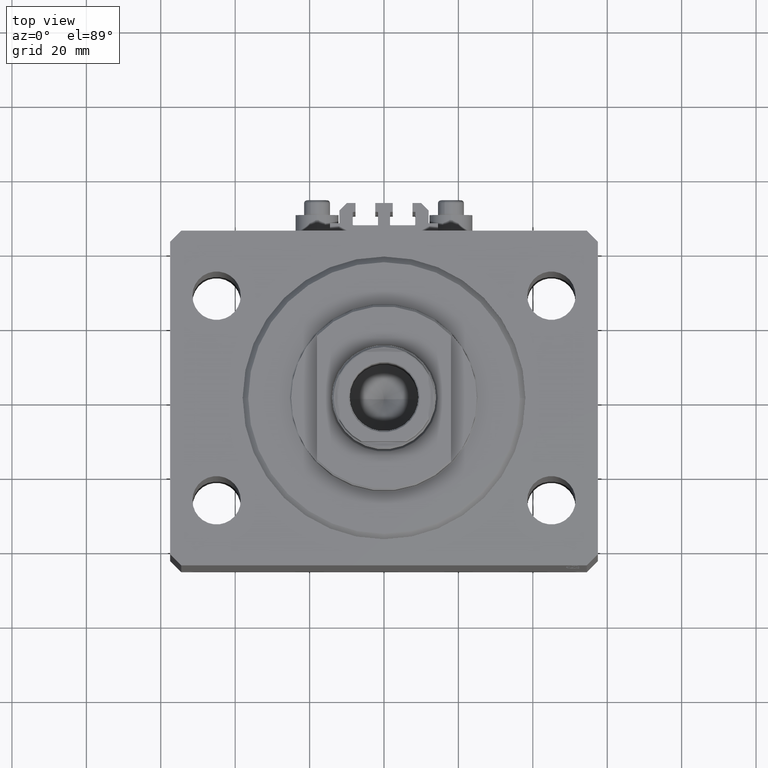
[diagram: clean part render]
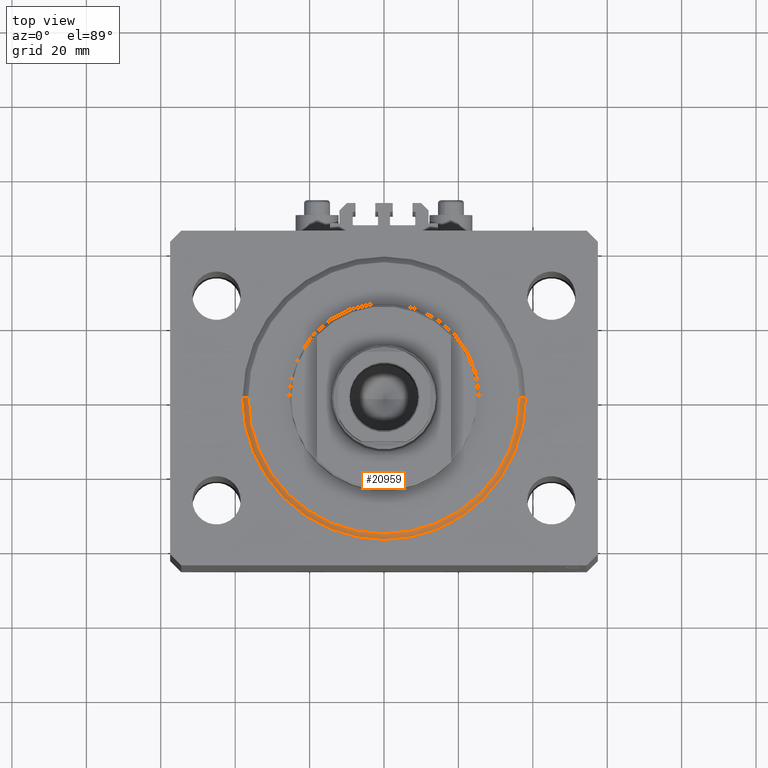
[diagram: same view with one face highlighted and labeled with its STEP entity id]
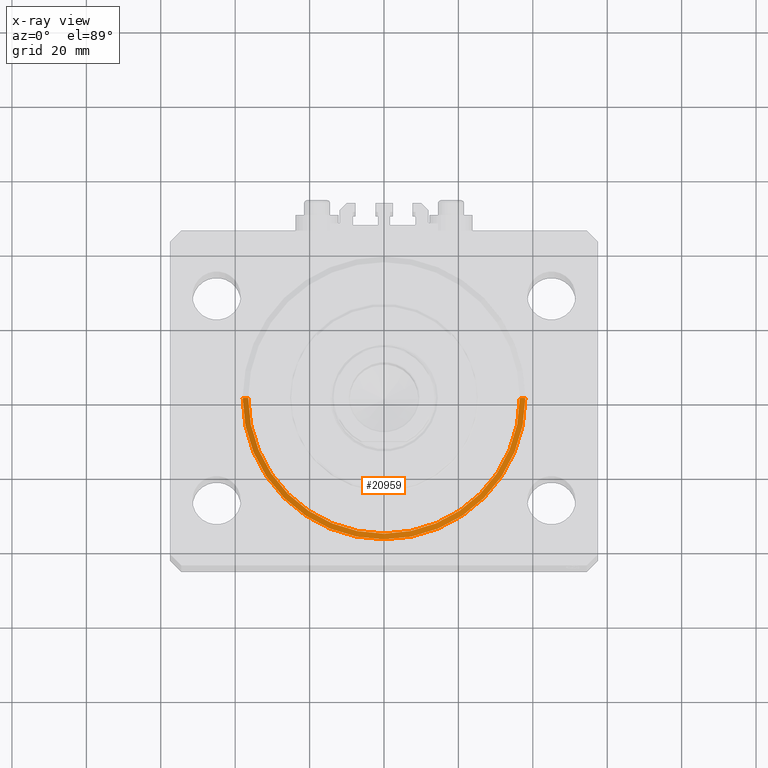
[diagram: x-ray of the same camera — body ghosted, the highlighted face saturated]
A machine part, top view. The second image highlights one B-rep face of the part: STEP entity #20959.
The next image is the same camera in x-ray: the body ghosted, the highlighted face saturated — about 0% of this face is hidden behind the body in this view.
In plain terms, the highlighted conical surface has half-angle 45 deg.
Its self-contained STEP definition (entity closure, byte-faithful):
#72 = CARTESIAN_POINT ( 'NONE',  ( -36.50000000000000000, 4.561809326823889791E-15, 0.000000000000000000 ) ) ;
#200 = CARTESIAN_POINT ( 'NONE',  ( 0.000000000000000000, 0.000000000000000000, 0.000000000000000000 ) ) ;
#308 = AXIS2_PLACEMENT_3D ( 'NONE', #16537, #38320, #35458 ) ;
#3362 = VERTEX_POINT ( 'NONE', #37096 ) ;
#3637 = EDGE_CURVE ( 'NONE', #23818, #33740, #13652, .T. ) ;
#4733 = ORIENTED_EDGE ( 'NONE', *, *, #3637, .F. ) ;
#5300 = FACE_OUTER_BOUND ( 'NONE', #11661, .T. ) ;
#6103 = VERTEX_POINT ( 'NONE', #18556 ) ;
#6231 = LINE ( 'NONE', #10058, #39150 ) ;
#10058 = CARTESIAN_POINT ( 'NONE',  ( 38.00000000000000000, 0.000000000000000000, 1.499999999999994449 ) ) ;
#11661 = EDGE_LOOP ( 'NONE', ( #22670, #4733, #37184, #30703 ) ) ;
#12394 = CARTESIAN_POINT ( 'NONE',  ( -38.00000000000000000, 4.653657836759941941E-15, 1.499999999999994449 ) ) ;
#13652 = CIRCLE ( 'NONE', #32032, 36.50000000000000000 ) ;
#16537 = CARTESIAN_POINT ( 'NONE',  ( 0.000000000000000000, 0.000000000000000000, 1.499999999999994449 ) ) ;
#17230 = DIRECTION ( 'NONE',  ( 0.7071067811865491270, 0.000000000000000000, 0.7071067811865459074 ) ) ;
#18147 = DIRECTION ( 'NONE',  ( 1.000000000000000000, 0.000000000000000000, 0.000000000000000000 ) ) ;
#18556 = CARTESIAN_POINT ( 'NONE',  ( -38.00000000000000000, 0.000000000000000000, 1.499999999999994449 ) ) ;
#20959 = ADVANCED_FACE ( 'NONE', ( #5300 ), #46949, .T. ) ;
#21184 = DIRECTION ( 'NONE',  ( 1.000000000000000000, 0.000000000000000000, 0.000000000000000000 ) ) ;
#22612 = CIRCLE ( 'NONE', #35615, 38.00000000000000000 ) ;
#22670 = ORIENTED_EDGE ( 'NONE', *, *, #42460, .F. ) ;
#23818 = VERTEX_POINT ( 'NONE', #25134 ) ;
#25134 = CARTESIAN_POINT ( 'NONE',  ( 36.50000000000000000, 0.000000000000000000, 0.000000000000000000 ) ) ;
#27518 = DIRECTION ( 'NONE',  ( -0.7071067811865491270, 8.659560562354953812E-17, 0.7071067811865459074 ) ) ;
#28386 = CARTESIAN_POINT ( 'NONE',  ( 0.000000000000000000, 0.000000000000000000, 1.499999999999994449 ) ) ;
#30703 = ORIENTED_EDGE ( 'NONE', *, *, #30806, .F. ) ;
#30806 = EDGE_CURVE ( 'NONE', #6103, #3362, #22612, .T. ) ;
#32032 = AXIS2_PLACEMENT_3D ( 'NONE', #200, #37038, #18147 ) ;
#33740 = VERTEX_POINT ( 'NONE', #72 ) ;
#35458 = DIRECTION ( 'NONE',  ( 1.000000000000000000, 0.000000000000000000, 0.000000000000000000 ) ) ;
#35615 = AXIS2_PLACEMENT_3D ( 'NONE', #28386, #46322, #21184 ) ;
#36847 = VECTOR ( 'NONE', #27518, 1000.000000000000114 ) ;
#37038 = DIRECTION ( 'NONE',  ( -0.000000000000000000, -0.000000000000000000, -1.000000000000000000 ) ) ;
#37096 = CARTESIAN_POINT ( 'NONE',  ( 38.00000000000000000, 4.653657836759941941E-15, 1.499999999999994449 ) ) ;
#37184 = ORIENTED_EDGE ( 'NONE', *, *, #45164, .T. ) ;
#38320 = DIRECTION ( 'NONE',  ( -0.000000000000000000, -0.000000000000000000, 1.000000000000000000 ) ) ;
#39150 = VECTOR ( 'NONE', #17230, 1000.000000000000114 ) ;
#42460 = EDGE_CURVE ( 'NONE', #33740, #6103, #45194, .T. ) ;
#45164 = EDGE_CURVE ( 'NONE', #23818, #3362, #6231, .T. ) ;
#45194 = LINE ( 'NONE', #12394, #36847 ) ;
#46322 = DIRECTION ( 'NONE',  ( -0.000000000000000000, -0.000000000000000000, 1.000000000000000000 ) ) ;
#46949 = CONICAL_SURFACE ( 'NONE', #308, 38.00000000000000000, 0.7853981633974506105 ) ;